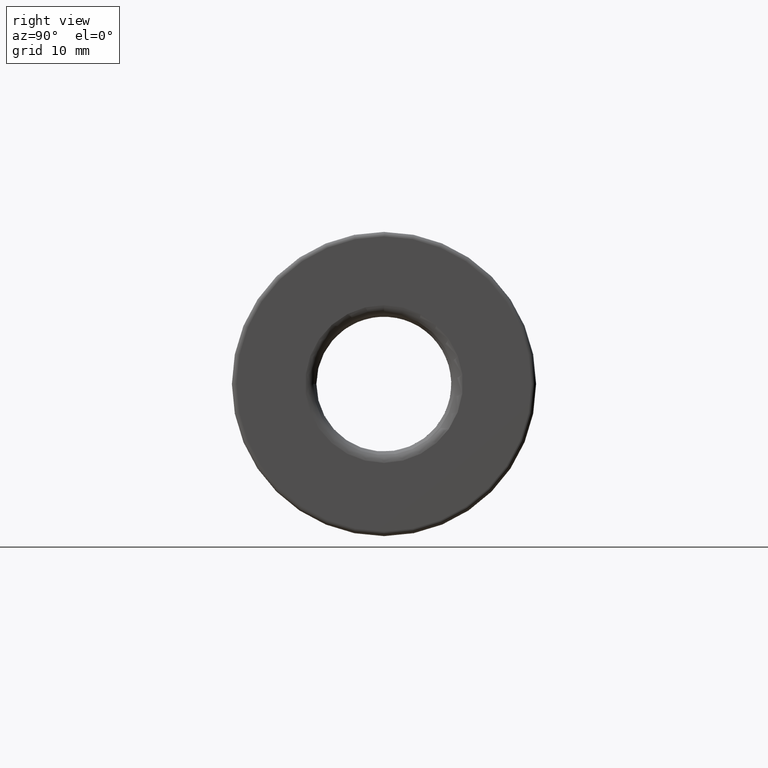
[diagram: clean part render]
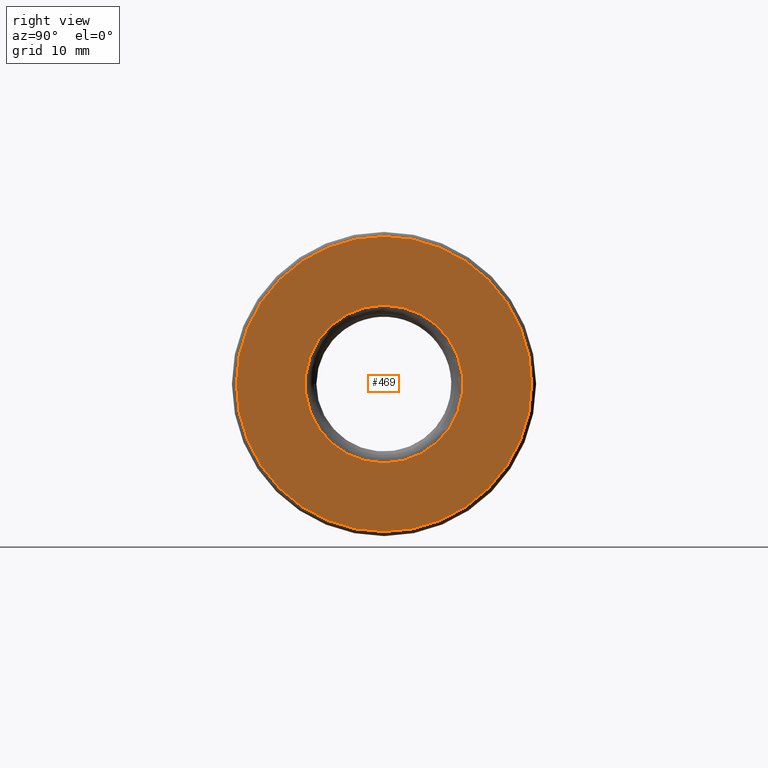
[diagram: same view with one face highlighted and labeled with its STEP entity id]
A machine part, right view. The second image highlights one B-rep face of the part: STEP entity #469.
In plain terms, the highlighted planar face has unit normal (1, 0, 0).
Its self-contained STEP definition (entity closure, byte-faithful):
#16=FACE_BOUND('',#123,.T.);
#20=PLANE('',#551);
#91=FACE_OUTER_BOUND('',#122,.T.);
#122=EDGE_LOOP('',(#365));
#123=EDGE_LOOP('',(#366));
#163=CIRCLE('',#549,13.1000000000001);
#165=CIRCLE('',#552,7.00000000000102);
#206=VERTEX_POINT('',#832);
#207=VERTEX_POINT('',#836);
#260=EDGE_CURVE('',#206,#206,#163,.T.);
#262=EDGE_CURVE('',#207,#207,#165,.T.);
#365=ORIENTED_EDGE('',*,*,#260,.T.);
#366=ORIENTED_EDGE('',*,*,#262,.F.);
#469=ADVANCED_FACE('',(#91,#16),#20,.T.);
#549=AXIS2_PLACEMENT_3D('',#833,#684,#685);
#551=AXIS2_PLACEMENT_3D('',#835,#688,#689);
#552=AXIS2_PLACEMENT_3D('',#837,#690,#691);
#684=DIRECTION('center_axis',(1.,0.,0.));
#685=DIRECTION('ref_axis',(0.,0.,-1.));
#688=DIRECTION('center_axis',(1.,0.,0.));
#689=DIRECTION('ref_axis',(0.,0.,-1.));
#690=DIRECTION('center_axis',(1.,0.,0.));
#691=DIRECTION('ref_axis',(0.,0.,-1.));
#832=CARTESIAN_POINT('',(0.,-1.60428730688304E-15,13.1000000000001));
#833=CARTESIAN_POINT('Origin',(0.,0.,0.));
#835=CARTESIAN_POINT('Origin',(0.,7.00000000000102,0.));
#836=CARTESIAN_POINT('',(-2.04281036531029E-13,-8.57252759403272E-16,7.00000000000102));
#837=CARTESIAN_POINT('Origin',(-2.04281036531029E-13,0.,0.));